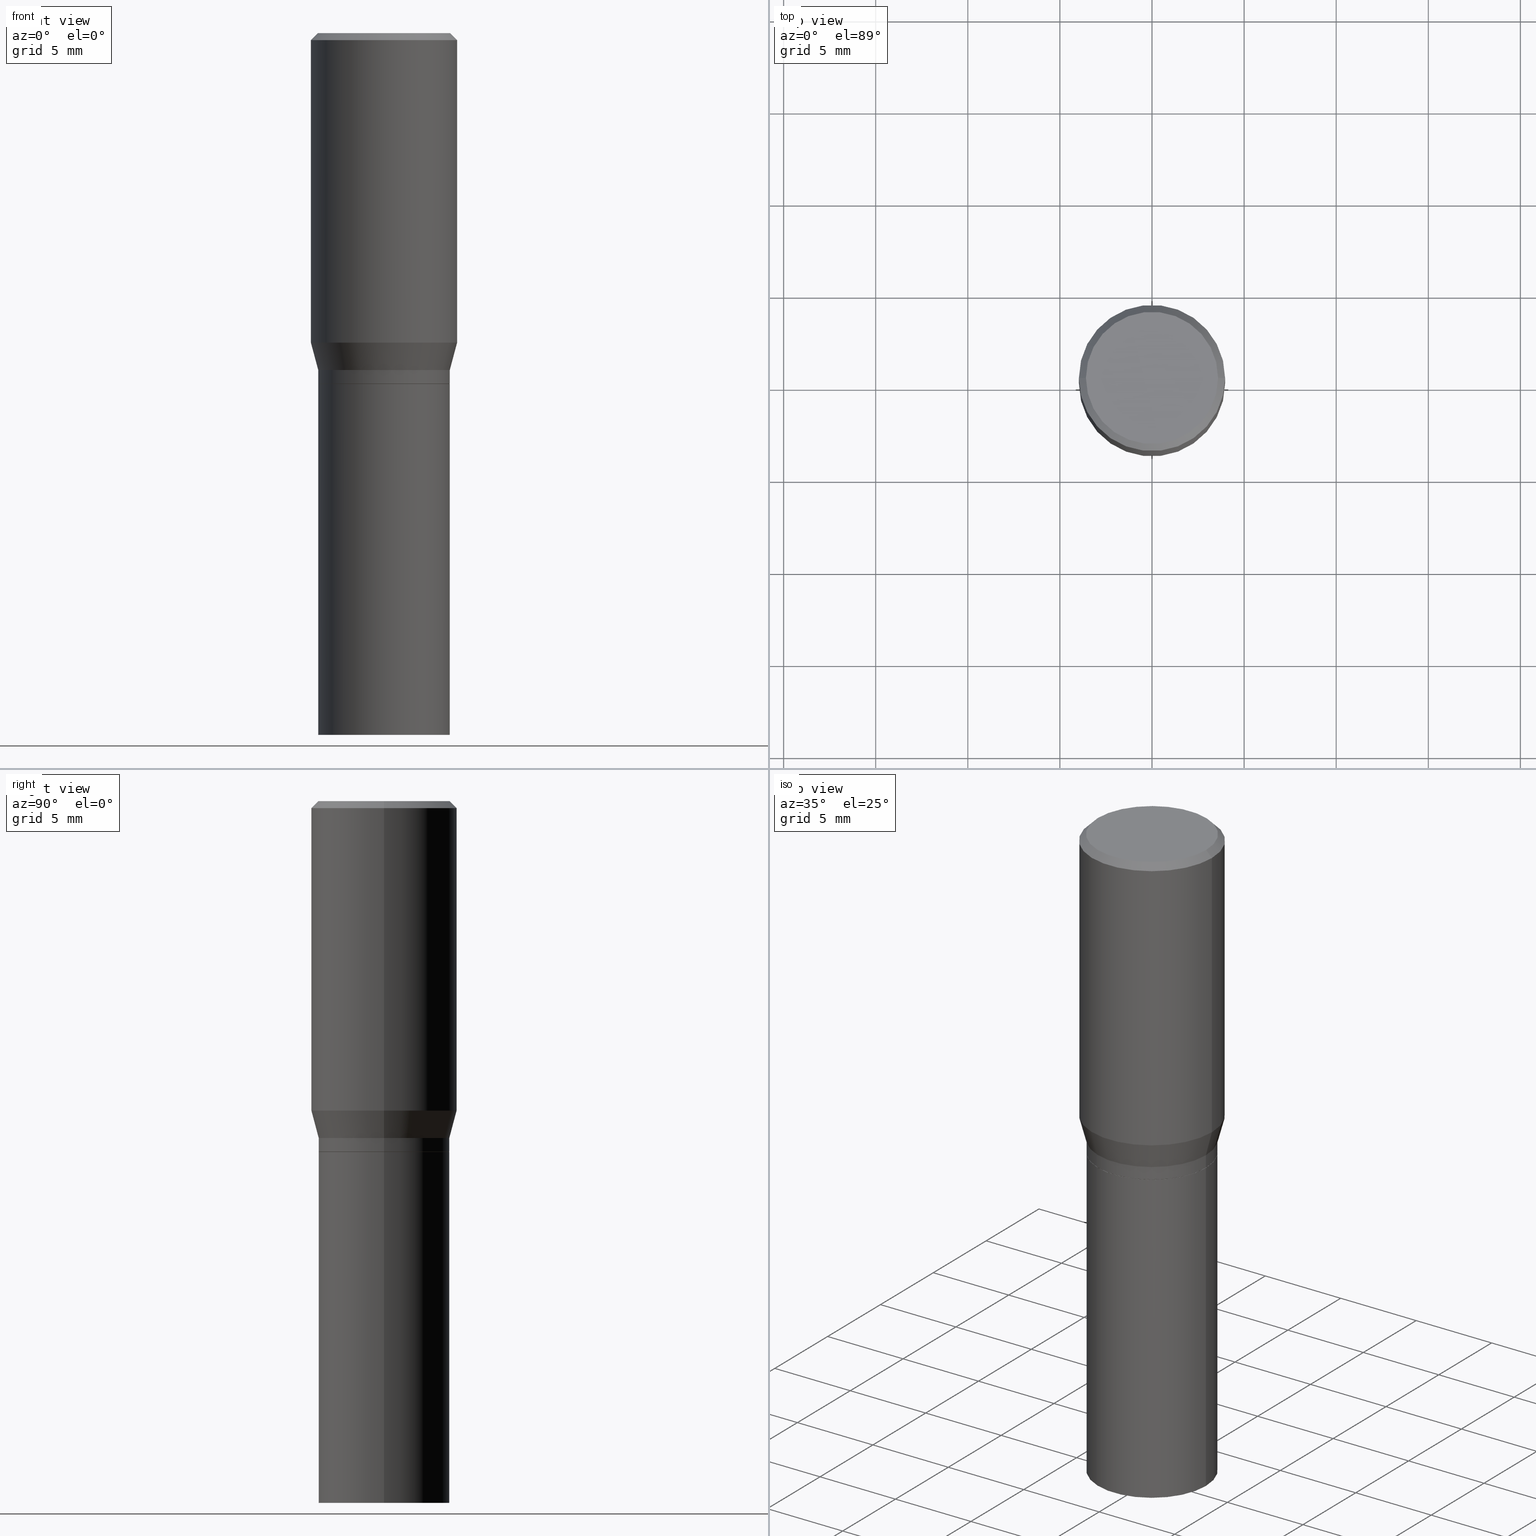
[diagram: canonical four-view strip — front | top / right | iso, engineering-drawing reading convention]
A machine part, canonical four-view strip (front | top / right | iso — engineering-drawing reading convention). The complete STEP part file that produces these views, byte-faithful:
ISO-10303-21;
HEADER;
FILE_DESCRIPTION (( 'STEP AP203' ),
    '1' );
FILE_NAME ('35282.STEP',
    '2024-03-13T16:39:23',
    ( '' ),
    ( '' ),
    'SwSTEP 2.0',
    'SolidWorks 2023',
    '' );
FILE_SCHEMA (( 'CONFIG_CONTROL_DESIGN' ));
ENDSEC;

DATA;
#1 = FACE_OUTER_BOUND ( 'NONE', #64, .T. ) ;
#2 = DIRECTION ( 'NONE',  ( 1.000000000000000000, -6.982962677686265922E-15, 4.876176775795935793E-29 ) ) ;
#3 = PRODUCT_DEFINITION ( 'UNKNOWN', '', #126, #108 ) ;
#4 = DATE_AND_TIME ( #217, #45 ) ;
#5 = EDGE_CURVE ( 'NONE', #388, #19, #381, .T. ) ;
#6 = CONICAL_SURFACE ( 'NONE', #324, 0.1562500000000000000, 0.7853981633974377319 ) ;
#7 = LOCAL_TIME ( 12, 39, 23.00000000000000000, #200 ) ;
#8 = DIRECTION ( 'NONE',  ( -2.445468806185136597E-29, 3.491481338843145583E-15, 1.000000000000000000 ) ) ;
#9 = CARTESIAN_POINT ( 'NONE',  ( 1.834101604638852448E-29, -2.618611004132359088E-15, -0.7500000000000001110 ) ) ;
#10 = APPROVAL_STATUS ( 'not_yet_approved' ) ;
#11 = EDGE_CURVE ( 'NONE', #246, #352, #38, .T. ) ;
#12 = FACE_OUTER_BOUND ( 'NONE', #351, .T. ) ;
#13 = CARTESIAN_POINT ( 'NONE',  ( 9.863434782231852123E-16, 0.1412500000000000144, -3.382281833131152300E-16 ) ) ;
#14 = VECTOR ( 'NONE', #224, 39.37007874015748143 ) ;
#15 = CARTESIAN_POINT ( 'NONE',  ( -0.1412500000000000144, 1.012529588264509344E-15, 3.098871115969513504E-16 ) ) ;
#16 = DIMENSIONAL_EXPONENTS ( 1.000000000000000000, 0.000000000000000000, 0.000000000000000000, 0.000000000000000000, 0.000000000000000000, 0.000000000000000000, 0.000000000000000000 ) ;
#17 = CARTESIAN_POINT ( 'NONE',  ( 0.1412500000000000144, -1.046685187209838552E-15, 3.098871115969654020E-16 ) ) ;
#18 = FACE_OUTER_BOUND ( 'NONE', #198, .T. ) ;
#19 = VERTEX_POINT ( 'NONE', #314 ) ;
#20 = FACE_OUTER_BOUND ( 'NONE', #233, .T. ) ;
#21 = VECTOR ( 'NONE', #181, 39.37007874015748143 ) ;
#22 = LINE ( 'NONE', #85, #39 ) ;
#23 = CARTESIAN_POINT ( 'NONE',  ( 0.000000000000000000, 0.000000000000000000, 0.000000000000000000 ) ) ;
#24 = EDGE_CURVE ( 'NONE', #310, #285, #268, .T. ) ;
#25 = VERTEX_POINT ( 'NONE', #46 ) ;
#26 = CALENDAR_DATE ( 2024, 13, 3 ) ;
#27 = ORIENTED_EDGE ( 'NONE', *, *, #253, .F. ) ;
#28 = ORIENTED_EDGE ( 'NONE', *, *, #24, .F. ) ;
#29 = CYLINDRICAL_SURFACE ( 'NONE', #261, 0.1406000000000000305 ) ;
#30 = ORIENTED_EDGE ( 'NONE', *, *, #259, .T. ) ;
#31 = PERSON_AND_ORGANIZATION_ROLE ( 'creator' ) ;
#32 = ORIENTED_EDGE ( 'NONE', *, *, #159, .T. ) ;
#33 = ORIENTED_EDGE ( 'NONE', *, *, #11, .F. ) ;
#34 = CALENDAR_DATE ( 2024, 13, 3 ) ;
#35 = ORIENTED_EDGE ( 'NONE', *, *, #144, .T. ) ;
#36 = ORIENTED_EDGE ( 'NONE', *, *, #442, .F. ) ;
#37 = SECURITY_CLASSIFICATION_LEVEL ( 'unclassified' ) ;
#38 = CIRCLE ( 'NONE', #295, 0.1406000000000000028 ) ;
#39 = VECTOR ( 'NONE', #121, 39.37007874015748143 ) ;
#40 = CARTESIAN_POINT ( 'NONE',  ( 1.617906033966727374E-29, -2.309941026975789734E-15, -0.6615934048615470520 ) ) ;
#41 = EDGE_CURVE ( 'NONE', #343, #413, #185, .T. ) ;
#42 = DIRECTION ( 'NONE',  ( -2.445468806185136597E-29, 3.491481338843145583E-15, 1.000000000000000000 ) ) ;
#43 = DIRECTION ( 'NONE',  ( 1.000000000000000000, -6.982962677686265133E-15, 0.000000000000000000 ) ) ;
#44 = CONICAL_SURFACE ( 'NONE', #424, 0.1406000000000000028, 0.2617993877991495744 ) ;
#45 = LOCAL_TIME ( 12, 39, 23.00000000000000000, #149 ) ;
#46 = CARTESIAN_POINT ( 'NONE',  ( -0.1562500000000000000, -7.093359890406177996E-17, -0.01499999999999999944 ) ) ;
#47 = EDGE_CURVE ( 'NONE', #25, #175, #156, .T. ) ;
#48 = CC_DESIGN_PERSON_AND_ORGANIZATION_ASSIGNMENT ( #131, #99, ( #245 ) ) ;
#49 = CARTESIAN_POINT ( 'NONE',  ( -0.1401000000000000023, -1.620491404158347708E-15, -0.7500000000000001110 ) ) ;
#50 = DIRECTION ( 'NONE',  ( 1.000000000000000000, -6.982962677686265133E-15, 0.000000000000000000 ) ) ;
#51 = DIRECTION ( 'NONE',  ( 1.000000000000000000, -6.982962677686268288E-15, 0.000000000000000000 ) ) ;
#52 = CIRCLE ( 'NONE', #228, 0.1406000000000000583 ) ;
#53 = CARTESIAN_POINT ( 'NONE',  ( 3.668203209277705088E-31, -5.237222008264718399E-17, -0.01499999999999999944 ) ) ;
#54 = CARTESIAN_POINT ( 'NONE',  ( 1.760737540453298372E-29, -2.513866563967064930E-15, -0.7199999999999999734 ) ) ;
#55 = CC_DESIGN_DATE_AND_TIME_ASSIGNMENT ( #178, #464, ( #3 ) ) ;
#56 = ADVANCED_FACE ( 'NONE', ( #327 ), #44, .T. ) ;
#57 = CYLINDRICAL_SURFACE ( 'NONE', #164, 0.1406000000000000305 ) ;
#58 = EDGE_LOOP ( 'NONE', ( #421, #32, #322, #141 ) ) ;
#59 = CARTESIAN_POINT ( 'NONE',  ( -0.1406000000000000583, -1.617842176984236309E-15, -0.7495000000000000551 ) ) ;
#60 = PLANE ( 'NONE',  #347 ) ;
#61 = EDGE_CURVE ( 'NONE', #139, #410, #219, .T. ) ;
#62 = EDGE_LOOP ( 'NONE', ( #466, #98 ) ) ;
#63 = ORIENTED_EDGE ( 'NONE', *, *, #144, .F. ) ;
#64 = EDGE_LOOP ( 'NONE', ( #453, #278, #378, #63 ) ) ;
#65 = CALENDAR_DATE ( 2024, 13, 3 ) ;
#66 = ORIENTED_EDGE ( 'NONE', *, *, #239, .T. ) ;
#67 = ORIENTED_EDGE ( 'NONE', *, *, #369, .F. ) ;
#68 = AXIS2_PLACEMENT_3D ( 'NONE', #291, #439, #395 ) ;
#69 = APPROVAL_DATE_TIME ( #309, #214 ) ;
#70 = APPROVAL_PERSON_ORGANIZATION ( #360, #365, #146 ) ;
#71 = ORIENTED_EDGE ( 'NONE', *, *, #239, .F. ) ;
#72 = COORDINATED_UNIVERSAL_TIME_OFFSET ( 5, 0, .BEHIND. ) ;
#73 = ORIENTED_EDGE ( 'NONE', *, *, #350, .T. ) ;
#74 = ORIENTED_EDGE ( 'NONE', *, *, #442, .T. ) ;
#75 = PERSON_AND_ORGANIZATION_ROLE ( 'design_supplier' ) ;
#76 = CYLINDRICAL_SURFACE ( 'NONE', #68, 0.1562500000000000000 ) ;
#77 = ADVANCED_FACE ( 'NONE', ( #430 ), #170, .T. ) ;
#78 = LINE ( 'NONE', #359, #125 ) ;
#79 = FACE_OUTER_BOUND ( 'NONE', #417, .T. ) ;
#80 = DIRECTION ( 'NONE',  ( 1.000000000000000000, -6.982962677686269077E-15, 0.000000000000000000 ) ) ;
#81 = CARTESIAN_POINT ( 'NONE',  ( -0.1401000000000000023, -1.623140631332458909E-15, -0.7500000000000001110 ) ) ;
#82 = DIRECTION ( 'NONE',  ( -1.000000000000000000, 6.982962677686266711E-15, 0.000000000000000000 ) ) ;
#83 = DIRECTION ( 'NONE',  ( -2.445468806185136597E-29, 3.491481338843145583E-15, 1.000000000000000000 ) ) ;
#84 = FACE_OUTER_BOUND ( 'NONE', #272, .T. ) ;
#85 = CARTESIAN_POINT ( 'NONE',  ( 0.1406000000000000028, -9.818045524826891058E-16, 6.855904546769086274E-30 ) ) ;
#86 = CONICAL_SURFACE ( 'NONE', #338, 0.1401000000000000023, 0.7853981633974653764 ) ;
#87 = EDGE_CURVE ( 'NONE', #139, #341, #392, .T. ) ;
#88 = VECTOR ( 'NONE', #337, 39.37007874015748143 ) ;
#89 = PRODUCT_RELATED_PRODUCT_CATEGORY ( 'detail', '', ( #258 ) ) ;
#90 = DIRECTION ( 'NONE',  ( 2.438088387897960049E-29, -3.491481338843145188E-15, -1.000000000000000000 ) ) ;
#91 = LINE ( 'NONE', #271, #425 ) ;
#92 = CARTESIAN_POINT ( 'NONE',  ( -0.1406000000000000028, 9.990230864787008809E-16, -6.916022736898397739E-30 ) ) ;
#93 = ORIENTED_EDGE ( 'NONE', *, *, #11, .T. ) ;
#94 = CARTESIAN_POINT ( 'NONE',  ( 3.576687321579069994E-29, -5.368277968210015545E-15, -1.500000000000000222 ) ) ;
#95 = ADVANCED_FACE ( 'NONE', ( #325 ), #216, .T. ) ;
#96 = AXIS2_PLACEMENT_3D ( 'NONE', #386, #363, #212 ) ;
#97 = APPROVAL_PERSON_ORGANIZATION ( #420, #214, #423 ) ;
#98 = ORIENTED_EDGE ( 'NONE', *, *, #292, .F. ) ;
#99 = PERSON_AND_ORGANIZATION_ROLE ( 'classification_officer' ) ;
#100 = ORIENTED_EDGE ( 'NONE', *, *, #61, .F. ) ;
#101 = MECHANICAL_CONTEXT ( 'NONE', #226, 'mechanical' ) ;
#102 = ORIENTED_EDGE ( 'NONE', *, *, #5, .T. ) ;
#103 = DIRECTION ( 'NONE',  ( -2.445468806185136597E-29, 3.491481338843145583E-15, 1.000000000000000000 ) ) ;
#104 = ORIENTED_EDGE ( 'NONE', *, *, #24, .T. ) ;
#105 = AXIS2_PLACEMENT_3D ( 'NONE', #40, #8, #293 ) ;
#106 = CC_DESIGN_SECURITY_CLASSIFICATION ( #245, ( #126 ) ) ;
#107 = VERTEX_POINT ( 'NONE', #182 ) ;
#108 = DESIGN_CONTEXT ( 'detailed design', #277, 'design' ) ;
#109 = DIRECTION ( 'NONE',  ( -2.445468806185136597E-29, 3.491481338843145583E-15, 1.000000000000000000 ) ) ;
#110 = ADVANCED_FACE ( 'NONE', ( #221 ), #151, .F. ) ;
#111 = DIRECTION ( 'NONE',  ( 1.000000000000000000, -6.982962677686266711E-15, 0.000000000000000000 ) ) ;
#112 = CARTESIAN_POINT ( 'NONE',  ( -0.1406000000000000028, -1.514843477488363852E-15, -0.7199999999999999734 ) ) ;
#113 = MANIFOLD_SOLID_BREP ( 'Body-Move/Copy2[1]', #433 ) ;
#114 = DIRECTION ( 'NONE',  ( -2.445468806185136597E-29, 3.491481338843145583E-15, 1.000000000000000000 ) ) ;
#115 = DIRECTION ( 'NONE',  ( -2.445468806185136597E-29, 3.491481338843145583E-15, 1.000000000000000000 ) ) ;
#116 = PRODUCT_DEFINITION_SHAPE ( 'NONE', 'NONE',  #3 ) ;
#117 = CIRCLE ( 'NONE', #364, 0.1412500000000000144 ) ;
#118 = DIRECTION ( 'NONE',  ( -2.445468806185136597E-29, 3.491481338843145583E-15, 1.000000000000000000 ) ) ;
#119 = MANIFOLD_SOLID_BREP ( 'Body-Move/Copy2[2]', #235 ) ;
#120 = CARTESIAN_POINT ( 'NONE',  ( 1.760737540453298372E-29, -2.513866563967064930E-15, -0.7199999999999999734 ) ) ;
#121 = DIRECTION ( 'NONE',  ( -2.445468806185136877E-29, 3.491481338843145188E-15, 1.000000000000000000 ) ) ;
#122 = EDGE_CURVE ( 'NONE', #175, #25, #303, .T. ) ;
#123 = CARTESIAN_POINT ( 'NONE',  ( 0.1562500000000000000, -1.091087918388479174E-15, 7.619026212181150377E-30 ) ) ;
#124 = DIRECTION ( 'NONE',  ( -2.445468806185136597E-29, 3.491481338843145583E-15, 1.000000000000000000 ) ) ;
#125 = VECTOR ( 'NONE', #188, 39.37007874015748143 ) ;
#126 = PRODUCT_DEFINITION_FORMATION_WITH_SPECIFIED_SOURCE ( 'ANY', '', #258, .NOT_KNOWN. ) ;
#127 = FACE_OUTER_BOUND ( 'NONE', #244, .T. ) ;
#128 = ADVANCED_FACE ( 'NONE', ( #397 ), #76, .T. ) ;
#129 = DIRECTION ( 'NONE',  ( -2.445468806185136597E-29, 3.491481338843145583E-15, 1.000000000000000000 ) ) ;
#130 = CARTESIAN_POINT ( 'NONE',  ( -0.1562500000000000000, 1.038715698305832094E-15, -0.01499999999999999944 ) ) ;
#131 = PERSON_AND_ORGANIZATION ( #454, #229 ) ;
#132 = ORIENTED_EDGE ( 'NONE', *, *, #320, .F. ) ;
#133 = AXIS2_PLACEMENT_3D ( 'NONE', #254, #257, #154 ) ;
#134 = CIRCLE ( 'NONE', #385, 0.1401000000000000023 ) ;
#135 = ORIENTED_EDGE ( 'NONE', *, *, #306, .T. ) ;
#136 = DIRECTION ( 'NONE',  ( -2.445468806185136597E-29, 3.491481338843145583E-15, 1.000000000000000000 ) ) ;
#137 = APPLICATION_PROTOCOL_DEFINITION ( 'international standard', 'config_control_design', 1994, #277 ) ;
#138 = ADVANCED_FACE ( 'NONE', ( #79 ), #438, .F. ) ;
#139 = VERTEX_POINT ( 'NONE', #49 ) ;
#140 = ORIENTED_EDGE ( 'NONE', *, *, #418, .T. ) ;
#141 = ORIENTED_EDGE ( 'NONE', *, *, #47, .F. ) ;
#142 = DIRECTION ( 'NONE',  ( 0.000000000000000000, 0.000000000000000000, 1.000000000000000000 ) ) ;
#143 = VECTOR ( 'NONE', #225, 39.37007874015748143 ) ;
#144 = EDGE_CURVE ( 'NONE', #341, #107, #52, .T. ) ;
#145 = CARTESIAN_POINT ( 'NONE',  ( 1.834101604638852448E-29, -2.618611004132359088E-15, -0.7500000000000001110 ) ) ;
#146 = APPROVAL_ROLE ( '' ) ;
#147 = DIRECTION ( 'NONE',  ( 1.000000000000000000, -6.982962677686268288E-15, 0.000000000000000000 ) ) ;
#148 = DIRECTION ( 'NONE',  ( -0.2588190451025209060, 5.211531920934547097E-15, 0.9659258262890682012 ) ) ;
#149 = COORDINATED_UNIVERSAL_TIME_OFFSET ( 5, 0, .BEHIND. ) ;
#150 = APPROVAL_PERSON_ORGANIZATION ( #286, #355, #315 ) ;
#151 = PLANE ( 'NONE',  #393 ) ;
#152 = CC_DESIGN_PERSON_AND_ORGANIZATION_ASSIGNMENT ( #241, #31, ( #3 ) ) ;
#153 = ORIENTED_EDGE ( 'NONE', *, *, #301, .F. ) ;
#154 = DIRECTION ( 'NONE',  ( 1.000000000000000000, -6.982962677686266711E-15, 4.876176775795936353E-29 ) ) ;
#155 = DIRECTION ( 'NONE',  ( -1.000000000000000000, 6.982962677686265922E-15, -4.876176775795935793E-29 ) ) ;
#156 = CIRCLE ( 'NONE', #330, 0.1562500000000000000 ) ;
#157 = CC_DESIGN_APPROVAL ( #214, ( #3 ) ) ;
#158 = CARTESIAN_POINT ( 'NONE',  ( 0.000000000000000000, 0.000000000000000000, 0.000000000000000000 ) ) ;
#159 = EDGE_CURVE ( 'NONE', #413, #19, #311, .T. ) ;
#160 = FACE_OUTER_BOUND ( 'NONE', #380, .T. ) ;
#161 = CARTESIAN_POINT ( 'NONE',  ( 3.668203209277704895E-29, -5.237222008264718177E-15, -1.500000000000000222 ) ) ;
#162 = DIRECTION ( 'NONE',  ( -2.438088387897960049E-29, 3.491481338843145188E-15, 1.000000000000000000 ) ) ;
#163 = CARTESIAN_POINT ( 'NONE',  ( -7.578192648491738489E-45, 1.081965067288783235E-30, 3.098871115969583022E-16 ) ) ;
#164 = AXIS2_PLACEMENT_3D ( 'NONE', #23, #124, #265 ) ;
#165 = CARTESIAN_POINT ( 'NONE',  ( -0.1406000000000000028, -1.357280739919498424E-15, -0.7199999999999999734 ) ) ;
#166 = CARTESIAN_POINT ( 'NONE',  ( -0.1562500000000000000, -1.199718002350633194E-15, -0.6615934048615470520 ) ) ;
#167 = ORIENTED_EDGE ( 'NONE', *, *, #122, .T. ) ;
#168 = DATE_AND_TIME ( #26, #269 ) ;
#169 = ORIENTED_EDGE ( 'NONE', *, *, #173, .T. ) ;
#170 = CONICAL_SURFACE ( 'NONE', #283, 0.1401000000000000023, 0.7853981633974653764 ) ;
#171 = LOCAL_TIME ( 12, 39, 23.00000000000000000, #72 ) ;
#172 = ORIENTED_EDGE ( 'NONE', *, *, #391, .T. ) ;
#173 = EDGE_CURVE ( 'NONE', #19, #413, #371, .T. ) ;
#174 = CC_DESIGN_PERSON_AND_ORGANIZATION_ASSIGNMENT ( #342, #75, ( #126 ) ) ;
#175 = VERTEX_POINT ( 'NONE', #183 ) ;
#176 = APPROVAL_STATUS ( 'not_yet_approved' ) ;
#177 = ORIENTED_EDGE ( 'NONE', *, *, #159, .F. ) ;
#178 = DATE_AND_TIME ( #34, #416 ) ;
#179 = ADVANCED_FACE ( 'NONE', ( #1 ), #86, .T. ) ;
#180 = ORIENTED_EDGE ( 'NONE', *, *, #301, .T. ) ;
#181 = DIRECTION ( 'NONE',  ( -0.7071067811865595631, 7.493145998870398336E-15, 0.7071067811865354713 ) ) ;
#182 = CARTESIAN_POINT ( 'NONE',  ( 0.1406000000000000583, -3.598669815945627085E-15, -0.7495000000000000551 ) ) ;
#183 = CARTESIAN_POINT ( 'NONE',  ( 0.1562500000000000000, -1.143460138471126253E-15, -0.01499999999999999944 ) ) ;
#184 = VECTOR ( 'NONE', #444, 39.37007874015748143 ) ;
#185 = LINE ( 'NONE', #112, #447 ) ;
#186 = CARTESIAN_POINT ( 'NONE',  ( 3.668203209277705088E-31, -5.237222008264718399E-17, -0.01499999999999999944 ) ) ;
#187 = EDGE_CURVE ( 'NONE', #410, #107, #78, .T. ) ;
#188 = DIRECTION ( 'NONE',  ( 0.7071067811865595631, -2.468850131082382884E-15, 0.7071067811865354713 ) ) ;
#189 = LINE ( 'NONE', #298, #184 ) ;
#190 = DIRECTION ( 'NONE',  ( -2.445468806185136597E-29, 3.491481338843145583E-15, 1.000000000000000000 ) ) ;
#191 = LINE ( 'NONE', #92, #220 ) ;
#192 = LINE ( 'NONE', #130, #14 ) ;
#193 = CARTESIAN_POINT ( 'NONE',  ( -0.1562500000000000000, 1.110223024625156540E-15, -7.685836078523291160E-30 ) ) ;
#194 = AXIS2_PLACEMENT_3D ( 'NONE', #13, #90, #155 ) ;
#195 = AXIS2_PLACEMENT_3D ( 'NONE', #54, #336, #51 ) ;
#196 = DIRECTION ( 'NONE',  ( -2.445468806185136877E-29, 3.491481338843145188E-15, 1.000000000000000000 ) ) ;
#197 = ORIENTED_EDGE ( 'NONE', *, *, #274, .T. ) ;
#198 = EDGE_LOOP ( 'NONE', ( #180, #74, #428, #248 ) ) ;
#199 = EDGE_LOOP ( 'NONE', ( #73, #210, #153, #450 ) ) ;
#200 = COORDINATED_UNIVERSAL_TIME_OFFSET ( 5, 0, .BEHIND. ) ;
#201 = ADVANCED_FACE ( 'NONE', ( #370 ), #407, .F. ) ;
#202 = EDGE_LOOP ( 'NONE', ( #169, #282, #461, #27 ) ) ;
#203 = CARTESIAN_POINT ( 'NONE',  ( 0.000000000000000000, 0.000000000000000000, 0.000000000000000000 ) ) ;
#204 = CIRCLE ( 'NONE', #465, 0.1406000000000000028 ) ;
#205 = DIRECTION ( 'NONE',  ( 0.2588190451025209060, 1.565188264969625123E-15, 0.9659258262890682012 ) ) ;
#206 = EDGE_LOOP ( 'NONE', ( #462, #100 ) ) ;
#207 = ORIENTED_EDGE ( 'NONE', *, *, #41, .T. ) ;
#208 = APPROVAL_STATUS ( 'not_yet_approved' ) ;
#209 = ADVANCED_FACE ( 'NONE', ( #84 ), #6, .T. ) ;
#210 = ORIENTED_EDGE ( 'NONE', *, *, #87, .T. ) ;
#211 = PERSON_AND_ORGANIZATION ( #454, #229 ) ;
#212 = DIRECTION ( 'NONE',  ( 1.000000000000000000, -6.982962677686265922E-15, 4.895681441798226927E-29 ) ) ;
#213 = CARTESIAN_POINT ( 'NONE',  ( 1.760737540453298372E-29, -2.513866563967064930E-15, -0.7199999999999999734 ) ) ;
#214 = APPROVAL ( #208, 'UNSPECIFIED' ) ;
#215 = ADVANCED_FACE ( 'NONE', ( #12 ), #440, .T. ) ;
#216 = CYLINDRICAL_SURFACE ( 'NONE', #133, 0.1406000000000000028 ) ;
#217 = CALENDAR_DATE ( 2024, 13, 3 ) ;
#218 = CARTESIAN_POINT ( 'NONE',  ( 1.832878870235759926E-29, -2.616865263462937979E-15, -0.7495000000000000551 ) ) ;
#219 = CIRCLE ( 'NONE', #414, 0.1401000000000000023 ) ;
#220 = VECTOR ( 'NONE', #196, 39.37007874015748143 ) ;
#221 = FACE_OUTER_BOUND ( 'NONE', #206, .T. ) ;
#222 = CC_DESIGN_PERSON_AND_ORGANIZATION_ASSIGNMENT ( #211, #460, ( #258 ) ) ;
#223 = CARTESIAN_POINT ( 'NONE',  ( 0.1406000000000000028, -3.600415556615047800E-15, -0.7500000000000001110 ) ) ;
#224 = DIRECTION ( 'NONE',  ( -0.7071067811865400232, 2.468850131082178174E-15, -0.7071067811865550112 ) ) ;
#225 = DIRECTION ( 'NONE',  ( -2.445468806185136877E-29, 3.491481338843145188E-15, 1.000000000000000000 ) ) ;
#226 = APPLICATION_CONTEXT ( 'configuration controlled 3d designs of mechanical parts and assemblies' ) ;
#227 = DIRECTION ( 'NONE',  ( -2.445468806185136597E-29, 3.491481338843145583E-15, 1.000000000000000000 ) ) ;
#228 = AXIS2_PLACEMENT_3D ( 'NONE', #218, #115, #251 ) ;
#229 = ORGANIZATION ( 'UNSPECIFIED', 'UNSPECIFIED', '' ) ;
#230 = VECTOR ( 'NONE', #231, 39.37007874015748143 ) ;
#231 = DIRECTION ( 'NONE',  ( -2.445468806185136877E-29, 3.491481338843145188E-15, 1.000000000000000000 ) ) ;
#232 = DIRECTION ( 'NONE',  ( 1.000000000000000000, -6.982962677686269077E-15, 0.000000000000000000 ) ) ;
#233 = EDGE_LOOP ( 'NONE', ( #36, #35, #140, #422 ) ) ;
#234 = DIRECTION ( 'NONE',  ( -1.000000000000000000, 6.982962677686266711E-15, 0.000000000000000000 ) ) ;
#235 = CLOSED_SHELL ( 'NONE', ( #339, #77, #334, #128, #437, #56, #404, #209, #201, #110, #179, #456 ) ) ;
#236 = AXIS2_PLACEMENT_3D ( 'NONE', #161, #266, #299 ) ;
#237 = ORIENTED_EDGE ( 'NONE', *, *, #5, .F. ) ;
#238 = COORDINATED_UNIVERSAL_TIME_OFFSET ( 5, 0, .BEHIND. ) ;
#239 = EDGE_CURVE ( 'NONE', #352, #246, #346, .T. ) ;
#240 = EDGE_LOOP ( 'NONE', ( #132, #463, #419, #71 ) ) ;
#241 = PERSON_AND_ORGANIZATION ( #454, #229 ) ;
#242 = ADVANCED_BREP_SHAPE_REPRESENTATION ( '35282', ( #113, #119, #434 ), #458 ) ;
#243 = VERTEX_POINT ( 'NONE', #367 ) ;
#244 = EDGE_LOOP ( 'NONE', ( #389, #255, #167, #415 ) ) ;
#245 = SECURITY_CLASSIFICATION ( '', '', #37 ) ;
#246 = VERTEX_POINT ( 'NONE', #223 ) ;
#247 = CARTESIAN_POINT ( 'NONE',  ( 0.000000000000000000, 0.000000000000000000, 0.000000000000000000 ) ) ;
#248 = ORIENTED_EDGE ( 'NONE', *, *, #418, .F. ) ;
#249 = DATE_AND_TIME ( #65, #7 ) ;
#250 = CARTESIAN_POINT ( 'NONE',  ( 3.668203209277705088E-31, -5.237222008264718399E-17, -0.01499999999999999944 ) ) ;
#251 = DIRECTION ( 'NONE',  ( 1.000000000000000000, -6.982962677686265133E-15, 0.000000000000000000 ) ) ;
#252 = AXIS2_PLACEMENT_3D ( 'NONE', #361, #358, #256 ) ;
#253 = EDGE_CURVE ( 'NONE', #19, #175, #297, .T. ) ;
#254 = CARTESIAN_POINT ( 'NONE',  ( 0.000000000000000000, 0.000000000000000000, 0.000000000000000000 ) ) ;
#255 = ORIENTED_EDGE ( 'NONE', *, *, #383, .T. ) ;
#256 = DIRECTION ( 'NONE',  ( -1.000000000000000000, 6.982962677686265922E-15, -4.876176775795935793E-29 ) ) ;
#257 = DIRECTION ( 'NONE',  ( -2.445468806185136597E-29, 3.491481338843145583E-15, 1.000000000000000000 ) ) ;
#258 = PRODUCT ( '35282', '35282', '', ( #101 ) ) ;
#259 = EDGE_CURVE ( 'NONE', #308, #243, #408, .T. ) ;
#260 = AXIS2_PLACEMENT_3D ( 'NONE', #158, #294, #329 ) ;
#261 = AXIS2_PLACEMENT_3D ( 'NONE', #247, #103, #281 ) ;
#262 = DIRECTION ( 'NONE',  ( 2.445468806185136597E-29, -3.491481338843145583E-15, -1.000000000000000000 ) ) ;
#263 = CARTESIAN_POINT ( 'NONE',  ( 1.834101604638852448E-29, -2.618611004132359088E-15, -0.7500000000000001110 ) ) ;
#264 = CC_DESIGN_PERSON_AND_ORGANIZATION_ASSIGNMENT ( #382, #390, ( #126 ) ) ;
#265 = DIRECTION ( 'NONE',  ( 1.000000000000000000, -6.982962677686266711E-15, 4.876176775795936353E-29 ) ) ;
#266 = DIRECTION ( 'NONE',  ( -2.445468806185136597E-29, 3.491481338843145583E-15, 1.000000000000000000 ) ) ;
#267 = CYLINDRICAL_SURFACE ( 'NONE', #296, 0.1562500000000000000 ) ;
#268 = CIRCLE ( 'NONE', #96, 0.1412500000000000144 ) ;
#269 = LOCAL_TIME ( 12, 39, 23.00000000000000000, #238 ) ;
#270 = CARTESIAN_POINT ( 'NONE',  ( 1.834101604638852448E-29, -2.618611004132359088E-15, -0.7500000000000001110 ) ) ;
#271 = CARTESIAN_POINT ( 'NONE',  ( 0.1562500000000000000, -1.124325032234449083E-15, -0.01499999999999999944 ) ) ;
#272 = EDGE_LOOP ( 'NONE', ( #344, #28, #316, #313 ) ) ;
#273 = APPROVAL_DATE_TIME ( #249, #355 ) ;
#274 = EDGE_CURVE ( 'NONE', #388, #343, #332, .T. ) ;
#275 = CC_DESIGN_APPROVAL ( #355, ( #126 ) ) ;
#276 = EDGE_LOOP ( 'NONE', ( #104, #135 ) ) ;
#277 = APPLICATION_CONTEXT ( 'configuration controlled 3d designs of mechanical parts and assemblies' ) ;
#278 = ORIENTED_EDGE ( 'NONE', *, *, #61, .T. ) ;
#279 = ORIENTED_EDGE ( 'NONE', *, *, #173, .F. ) ;
#280 = EDGE_LOOP ( 'NONE', ( #318, #172, #102, #177 ) ) ;
#281 = DIRECTION ( 'NONE',  ( 1.000000000000000000, -6.982962677686266711E-15, 4.876176775795936353E-29 ) ) ;
#282 = ORIENTED_EDGE ( 'NONE', *, *, #357, .T. ) ;
#283 = AXIS2_PLACEMENT_3D ( 'NONE', #9, #42, #400 ) ;
#284 = CC_DESIGN_DATE_AND_TIME_ASSIGNMENT ( #168, #431, ( #245 ) ) ;
#285 = VERTEX_POINT ( 'NONE', #17 ) ;
#286 = PERSON_AND_ORGANIZATION ( #454, #229 ) ;
#287 = DIRECTION ( 'NONE',  ( 1.000000000000000000, -6.982962677686269077E-15, 0.000000000000000000 ) ) ;
#288 = CARTESIAN_POINT ( 'NONE',  ( 1.834101604638852448E-29, -2.618611004132359088E-15, -0.7500000000000001110 ) ) ;
#289 = DIRECTION ( 'NONE',  ( -2.445468806185136597E-29, 3.491481338843145583E-15, 1.000000000000000000 ) ) ;
#290 = AXIS2_PLACEMENT_3D ( 'NONE', #120, #405, #333 ) ;
#291 = CARTESIAN_POINT ( 'NONE',  ( 0.000000000000000000, 0.000000000000000000, 0.000000000000000000 ) ) ;
#292 = EDGE_CURVE ( 'NONE', #243, #308, #441, .T. ) ;
#293 = DIRECTION ( 'NONE',  ( 1.000000000000000000, -6.982962677686265133E-15, 0.000000000000000000 ) ) ;
#294 = DIRECTION ( 'NONE',  ( -2.445468806185136597E-29, 3.491481338843145583E-15, 1.000000000000000000 ) ) ;
#295 = AXIS2_PLACEMENT_3D ( 'NONE', #459, #136, #348 ) ;
#296 = AXIS2_PLACEMENT_3D ( 'NONE', #340, #227, #373 ) ;
#297 = LINE ( 'NONE', #123, #143 ) ;
#298 = CARTESIAN_POINT ( 'NONE',  ( -0.1406000000000000305, 9.990230864787010781E-16, -6.916022736898399140E-30 ) ) ;
#299 = DIRECTION ( 'NONE',  ( 1.000000000000000000, -6.982962677686265133E-15, 0.000000000000000000 ) ) ;
#300 = DIRECTION ( 'NONE',  ( 1.000000000000000000, -6.982962677686265922E-15, 4.876176775795935793E-29 ) ) ;
#301 = EDGE_CURVE ( 'NONE', #107, #341, #394, .T. ) ;
#302 = DIRECTION ( 'NONE',  ( 1.000000000000000000, -6.982962677686265922E-15, 4.895681441798226927E-29 ) ) ;
#303 = CIRCLE ( 'NONE', #457, 0.1562500000000000000 ) ;
#304 = CC_DESIGN_APPROVAL ( #365, ( #245 ) ) ;
#305 = CARTESIAN_POINT ( 'NONE',  ( 0.1406000000000000028, -3.495671116449754036E-15, -0.7199999999999999734 ) ) ;
#306 = EDGE_CURVE ( 'NONE', #285, #310, #117, .T. ) ;
#307 = CARTESIAN_POINT ( 'NONE',  ( 0.1401000000000000023, -3.596924075276205581E-15, -0.7500000000000001110 ) ) ;
#308 = VERTEX_POINT ( 'NONE', #449 ) ;
#309 = DATE_AND_TIME ( #349, #171 ) ;
#310 = VERTEX_POINT ( 'NONE', #15 ) ;
#311 = CIRCLE ( 'NONE', #105, 0.1562500000000000000 ) ;
#312 = AXIS2_PLACEMENT_3D ( 'NONE', #443, #190, #50 ) ;
#313 = ORIENTED_EDGE ( 'NONE', *, *, #47, .T. ) ;
#314 = CARTESIAN_POINT ( 'NONE',  ( 0.1562500000000000000, -3.401028945364269302E-15, -0.6615934048615470520 ) ) ;
#315 = APPROVAL_ROLE ( '' ) ;
#316 = ORIENTED_EDGE ( 'NONE', *, *, #427, .T. ) ;
#317 =( LENGTH_UNIT ( ) NAMED_UNIT ( * ) SI_UNIT ( $, .METRE. ) );
#318 = ORIENTED_EDGE ( 'NONE', *, *, #41, .F. ) ;
#319 =( NAMED_UNIT ( * ) PLANE_ANGLE_UNIT ( ) SI_UNIT ( $, .RADIAN. ) );
#320 = EDGE_CURVE ( 'NONE', #243, #352, #191, .T. ) ;
#321 = CARTESIAN_POINT ( 'NONE',  ( 1.617906033966727374E-29, -2.309941026975789734E-15, -0.6615934048615470520 ) ) ;
#322 = ORIENTED_EDGE ( 'NONE', *, *, #253, .T. ) ;
#323 = CARTESIAN_POINT ( 'NONE',  ( 1.834101604638852448E-29, -2.618611004132359088E-15, -0.7500000000000001110 ) ) ;
#324 = AXIS2_PLACEMENT_3D ( 'NONE', #53, #262, #82 ) ;
#325 = FACE_OUTER_BOUND ( 'NONE', #240, .T. ) ;
#326 = CONICAL_SURFACE ( 'NONE', #195, 0.1406000000000000028, 0.2617993877991495744 ) ;
#327 = FACE_OUTER_BOUND ( 'NONE', #280, .T. ) ;
#328 = DIRECTION ( 'NONE',  ( 1.000000000000000000, -6.982962677686266711E-15, 0.000000000000000000 ) ) ;
#329 = DIRECTION ( 'NONE',  ( 1.000000000000000000, -6.982962677686266711E-15, 4.876176775795936353E-29 ) ) ;
#330 = AXIS2_PLACEMENT_3D ( 'NONE', #186, #289, #328 ) ;
#331 = DIRECTION ( 'NONE',  ( 2.445468806185136597E-29, -3.491481338843145583E-15, -1.000000000000000000 ) ) ;
#332 = CIRCLE ( 'NONE', #290, 0.1406000000000000028 ) ;
#333 = DIRECTION ( 'NONE',  ( 1.000000000000000000, -6.982962677686268288E-15, 0.000000000000000000 ) ) ;
#334 = ADVANCED_FACE ( 'NONE', ( #127 ), #401, .T. ) ;
#335 = CARTESIAN_POINT ( 'NONE',  ( 3.668203209277705088E-31, -5.237222008264718399E-17, -0.01499999999999999944 ) ) ;
#336 = DIRECTION ( 'NONE',  ( -2.445468806185136597E-29, 3.491481338843145583E-15, 1.000000000000000000 ) ) ;
#337 = DIRECTION ( 'NONE',  ( -2.445468806185136877E-29, 3.491481338843145188E-15, 1.000000000000000000 ) ) ;
#338 = AXIS2_PLACEMENT_3D ( 'NONE', #288, #432, #80 ) ;
#339 = ADVANCED_FACE ( 'NONE', ( #18 ), #57, .T. ) ;
#340 = CARTESIAN_POINT ( 'NONE',  ( 0.000000000000000000, 0.000000000000000000, 0.000000000000000000 ) ) ;
#341 = VERTEX_POINT ( 'NONE', #59 ) ;
#342 = PERSON_AND_ORGANIZATION ( #454, #229 ) ;
#343 = VERTEX_POINT ( 'NONE', #165 ) ;
#344 = ORIENTED_EDGE ( 'NONE', *, *, #383, .F. ) ;
#345 = LENGTH_MEASURE_WITH_UNIT ( LENGTH_MEASURE( 0.02539999999999999897 ), #317 );
#346 = CIRCLE ( 'NONE', #448, 0.1406000000000000028 ) ;
#347 = AXIS2_PLACEMENT_3D ( 'NONE', #94, #162, #300 ) ;
#348 = DIRECTION ( 'NONE',  ( 1.000000000000000000, -6.982962677686265133E-15, 0.000000000000000000 ) ) ;
#349 = CALENDAR_DATE ( 2024, 13, 3 ) ;
#350 = EDGE_CURVE ( 'NONE', #410, #139, #134, .T. ) ;
#351 = EDGE_LOOP ( 'NONE', ( #30, #354, #33, #67 ) ) ;
#352 = VERTEX_POINT ( 'NONE', #376 ) ;
#353 = COORDINATED_UNIVERSAL_TIME_OFFSET ( 5, 0, .BEHIND. ) ;
#354 = ORIENTED_EDGE ( 'NONE', *, *, #320, .T. ) ;
#355 = APPROVAL ( #176, 'UNSPECIFIED' ) ;
#356 = APPLICATION_PROTOCOL_DEFINITION ( 'international standard', 'config_control_design', 1994, #226 ) ;
#357 = EDGE_CURVE ( 'NONE', #413, #25, #406, .T. ) ;
#358 = DIRECTION ( 'NONE',  ( 2.438088387897960049E-29, -3.491481338843145188E-15, -1.000000000000000000 ) ) ;
#359 = CARTESIAN_POINT ( 'NONE',  ( 0.1401000000000000023, -3.596924075276205581E-15, -0.7500000000000001110 ) ) ;
#360 = PERSON_AND_ORGANIZATION ( #454, #229 ) ;
#361 = CARTESIAN_POINT ( 'NONE',  ( 9.818045524827072496E-16, 0.1405999999999973937, -0.7500000000000005551 ) ) ;
#362 = AXIS2_PLACEMENT_3D ( 'NONE', #321, #398, #43 ) ;
#363 = DIRECTION ( 'NONE',  ( -2.445468806185136597E-29, 3.491481338843145583E-15, 1.000000000000000000 ) ) ;
#364 = AXIS2_PLACEMENT_3D ( 'NONE', #163, #129, #302 ) ;
#365 = APPROVAL ( #10, 'UNSPECIFIED' ) ;
#366 = DIRECTION ( 'NONE',  ( -2.445468806185136597E-29, 3.491481338843145583E-15, 1.000000000000000000 ) ) ;
#367 = CARTESIAN_POINT ( 'NONE',  ( -0.1406000000000000028, -2.928893419719837949E-15, -1.500000000000000222 ) ) ;
#368 = DIRECTION ( 'NONE',  ( 0.7071067811865400232, -7.319954787623230802E-15, -0.7071067811865550112 ) ) ;
#369 = EDGE_CURVE ( 'NONE', #308, #246, #22, .T. ) ;
#370 = FACE_OUTER_BOUND ( 'NONE', #276, .T. ) ;
#371 = CIRCLE ( 'NONE', #362, 0.1562500000000000000 ) ;
#372 = VECTOR ( 'NONE', #205, 39.37007874015748143 ) ;
#373 = DIRECTION ( 'NONE',  ( 1.000000000000000000, -6.982962677686266711E-15, 4.876176775795936353E-29 ) ) ;
#374 = AXIS2_PLACEMENT_3D ( 'NONE', #335, #331, #234 ) ;
#375 = DIRECTION ( 'NONE',  ( 1.000000000000000000, -6.982962677686265133E-15, 0.000000000000000000 ) ) ;
#376 = CARTESIAN_POINT ( 'NONE',  ( -0.1406000000000000028, -2.928893419719837949E-15, -0.7500000000000001110 ) ) ;
#377 = ADVANCED_FACE ( 'NONE', ( #451 ), #60, .F. ) ;
#378 = ORIENTED_EDGE ( 'NONE', *, *, #187, .T. ) ;
#379 = FACE_OUTER_BOUND ( 'NONE', #58, .T. ) ;
#380 = EDGE_LOOP ( 'NONE', ( #197, #207, #279, #237 ) ) ;
#381 = LINE ( 'NONE', #384, #372 ) ;
#382 = PERSON_AND_ORGANIZATION ( #454, #229 ) ;
#383 = EDGE_CURVE ( 'NONE', #285, #175, #91, .T. ) ;
#384 = CARTESIAN_POINT ( 'NONE',  ( 0.1406000000000000028, -3.495671116449754036E-15, -0.7199999999999999734 ) ) ;
#385 = AXIS2_PLACEMENT_3D ( 'NONE', #270, #403, #232 ) ;
#386 = CARTESIAN_POINT ( 'NONE',  ( -7.578192648491738489E-45, 1.081965067288783235E-30, 3.098871115969583022E-16 ) ) ;
#387 = DIRECTION ( 'NONE',  ( 1.000000000000000000, 0.000000000000000000, 0.000000000000000000 ) ) ;
#388 = VERTEX_POINT ( 'NONE', #305 ) ;
#389 = ORIENTED_EDGE ( 'NONE', *, *, #306, .F. ) ;
#390 = PERSON_AND_ORGANIZATION_ROLE ( 'creator' ) ;
#391 = EDGE_CURVE ( 'NONE', #343, #388, #204, .T. ) ;
#392 = LINE ( 'NONE', #81, #21 ) ;
#393 = AXIS2_PLACEMENT_3D ( 'NONE', #323, #436, #2 ) ;
#394 = CIRCLE ( 'NONE', #435, 0.1406000000000000583 ) ;
#395 = DIRECTION ( 'NONE',  ( 1.000000000000000000, -6.982962677686266711E-15, 4.876176775795936353E-29 ) ) ;
#396 = SHAPE_DEFINITION_REPRESENTATION ( #116, #242 ) ;
#397 = FACE_OUTER_BOUND ( 'NONE', #202, .T. ) ;
#398 = DIRECTION ( 'NONE',  ( -2.445468806185136597E-29, 3.491481338843145583E-15, 1.000000000000000000 ) ) ;
#399 = APPROVAL_DATE_TIME ( #4, #365 ) ;
#400 = DIRECTION ( 'NONE',  ( 1.000000000000000000, -6.982962677686269077E-15, 0.000000000000000000 ) ) ;
#401 = CONICAL_SURFACE ( 'NONE', #374, 0.1562500000000000000, 0.7853981633974377319 ) ;
#402 = DIRECTION ( 'NONE',  ( 1.000000000000000000, -6.982962677686265133E-15, 0.000000000000000000 ) ) ;
#403 = DIRECTION ( 'NONE',  ( -2.445468806185136597E-29, 3.491481338843145583E-15, 1.000000000000000000 ) ) ;
#404 = ADVANCED_FACE ( 'NONE', ( #379 ), #267, .T. ) ;
#405 = DIRECTION ( 'NONE',  ( -2.445468806185136597E-29, 3.491481338843145583E-15, 1.000000000000000000 ) ) ;
#406 = LINE ( 'NONE', #193, #88 ) ;
#407 = PLANE ( 'NONE',  #194 ) ;
#408 = CIRCLE ( 'NONE', #312, 0.1406000000000000028 ) ;
#409 = CARTESIAN_POINT ( 'NONE',  ( 0.1406000000000000305, -9.818045524826893030E-16, 6.855904546769087675E-30 ) ) ;
#410 = VERTEX_POINT ( 'NONE', #307 ) ;
#411 = DIRECTION ( 'NONE',  ( -2.445468806185136597E-29, 3.491481338843145583E-15, 1.000000000000000000 ) ) ;
#412 = CARTESIAN_POINT ( 'NONE',  ( 1.760737540453298372E-29, -2.513866563967064930E-15, -0.7199999999999999734 ) ) ;
#413 = VERTEX_POINT ( 'NONE', #166 ) ;
#414 = AXIS2_PLACEMENT_3D ( 'NONE', #145, #109, #287 ) ;
#415 = ORIENTED_EDGE ( 'NONE', *, *, #427, .F. ) ;
#416 = LOCAL_TIME ( 12, 39, 23.00000000000000000, #353 ) ;
#417 = EDGE_LOOP ( 'NONE', ( #93, #66 ) ) ;
#418 = EDGE_CURVE ( 'NONE', #107, #388, #452, .T. ) ;
#419 = ORIENTED_EDGE ( 'NONE', *, *, #369, .T. ) ;
#420 = PERSON_AND_ORGANIZATION ( #454, #229 ) ;
#421 = ORIENTED_EDGE ( 'NONE', *, *, #357, .F. ) ;
#422 = ORIENTED_EDGE ( 'NONE', *, *, #391, .F. ) ;
#423 = APPROVAL_ROLE ( '' ) ;
#424 = AXIS2_PLACEMENT_3D ( 'NONE', #213, #114, #147 ) ;
#425 = VECTOR ( 'NONE', #368, 39.37007874015748143 ) ;
#426 = UNCERTAINTY_MEASURE_WITH_UNIT (LENGTH_MEASURE( 1.000000000000000082E-05 ), #455, 'distance_accuracy_value', 'NONE');
#427 = EDGE_CURVE ( 'NONE', #310, #25, #192, .T. ) ;
#428 = ORIENTED_EDGE ( 'NONE', *, *, #274, .F. ) ;
#429 =( NAMED_UNIT ( * ) SI_UNIT ( $, .STERADIAN. ) SOLID_ANGLE_UNIT ( ) );
#430 = FACE_OUTER_BOUND ( 'NONE', #199, .T. ) ;
#431 = DATE_TIME_ROLE ( 'classification_date' ) ;
#432 = DIRECTION ( 'NONE',  ( -2.445468806185136597E-29, 3.491481338843145583E-15, 1.000000000000000000 ) ) ;
#433 = CLOSED_SHELL ( 'NONE', ( #215, #377, #95, #138 ) ) ;
#434 = AXIS2_PLACEMENT_3D ( 'NONE', #203, #142, #387 ) ;
#435 = AXIS2_PLACEMENT_3D ( 'NONE', #445, #411, #375 ) ;
#436 = DIRECTION ( 'NONE',  ( -2.438088387897960049E-29, 3.491481338843145188E-15, 1.000000000000000000 ) ) ;
#437 = ADVANCED_FACE ( 'NONE', ( #160 ), #326, .T. ) ;
#438 = PLANE ( 'NONE',  #252 ) ;
#439 = DIRECTION ( 'NONE',  ( -2.445468806185136597E-29, 3.491481338843145583E-15, 1.000000000000000000 ) ) ;
#440 = CYLINDRICAL_SURFACE ( 'NONE', #260, 0.1406000000000000028 ) ;
#441 = CIRCLE ( 'NONE', #236, 0.1406000000000000028 ) ;
#442 = EDGE_CURVE ( 'NONE', #341, #343, #189, .T. ) ;
#443 = CARTESIAN_POINT ( 'NONE',  ( 3.668203209277704895E-29, -5.237222008264718177E-15, -1.500000000000000222 ) ) ;
#444 = DIRECTION ( 'NONE',  ( -2.445468806185136877E-29, 3.491481338843145188E-15, 1.000000000000000000 ) ) ;
#445 = CARTESIAN_POINT ( 'NONE',  ( 1.832878870235759926E-29, -2.616865263462937979E-15, -0.7495000000000000551 ) ) ;
#446 = DIRECTION ( 'NONE',  ( 1.000000000000000000, -6.982962677686268288E-15, 0.000000000000000000 ) ) ;
#447 = VECTOR ( 'NONE', #148, 39.37007874015748143 ) ;
#448 = AXIS2_PLACEMENT_3D ( 'NONE', #263, #118, #402 ) ;
#449 = CARTESIAN_POINT ( 'NONE',  ( 0.1406000000000000028, -6.219026560747407283E-15, -1.500000000000000222 ) ) ;
#450 = ORIENTED_EDGE ( 'NONE', *, *, #187, .F. ) ;
#451 = FACE_OUTER_BOUND ( 'NONE', #62, .T. ) ;
#452 = LINE ( 'NONE', #409, #230 ) ;
#453 = ORIENTED_EDGE ( 'NONE', *, *, #87, .F. ) ;
#454 = PERSON ( 'UNSPECIFIED', 'UNSPECIFIED', 'UNSPECIFIED', ('UNSPECIFIED'), ('UNSPECIFIED'), ('UNSPECIFIED') ) ;
#455 =( CONVERSION_BASED_UNIT ( 'INCH', #345 ) LENGTH_UNIT ( ) NAMED_UNIT ( #16 ) );
#456 = ADVANCED_FACE ( 'NONE', ( #20 ), #29, .T. ) ;
#457 = AXIS2_PLACEMENT_3D ( 'NONE', #250, #366, #111 ) ;
#458 =( GEOMETRIC_REPRESENTATION_CONTEXT ( 3 ) GLOBAL_UNCERTAINTY_ASSIGNED_CONTEXT ( ( #426 ) ) GLOBAL_UNIT_ASSIGNED_CONTEXT ( ( #455, #319, #429 ) ) REPRESENTATION_CONTEXT ( 'NONE', 'WORKASPACE' ) );
#459 = CARTESIAN_POINT ( 'NONE',  ( 1.834101604638852448E-29, -2.618611004132359088E-15, -0.7500000000000001110 ) ) ;
#460 = PERSON_AND_ORGANIZATION_ROLE ( 'design_owner' ) ;
#461 = ORIENTED_EDGE ( 'NONE', *, *, #122, .F. ) ;
#462 = ORIENTED_EDGE ( 'NONE', *, *, #350, .F. ) ;
#463 = ORIENTED_EDGE ( 'NONE', *, *, #292, .T. ) ;
#464 = DATE_TIME_ROLE ( 'creation_date' ) ;
#465 = AXIS2_PLACEMENT_3D ( 'NONE', #412, #83, #446 ) ;
#466 = ORIENTED_EDGE ( 'NONE', *, *, #259, .F. ) ;
ENDSEC;
END-ISO-10303-21;
